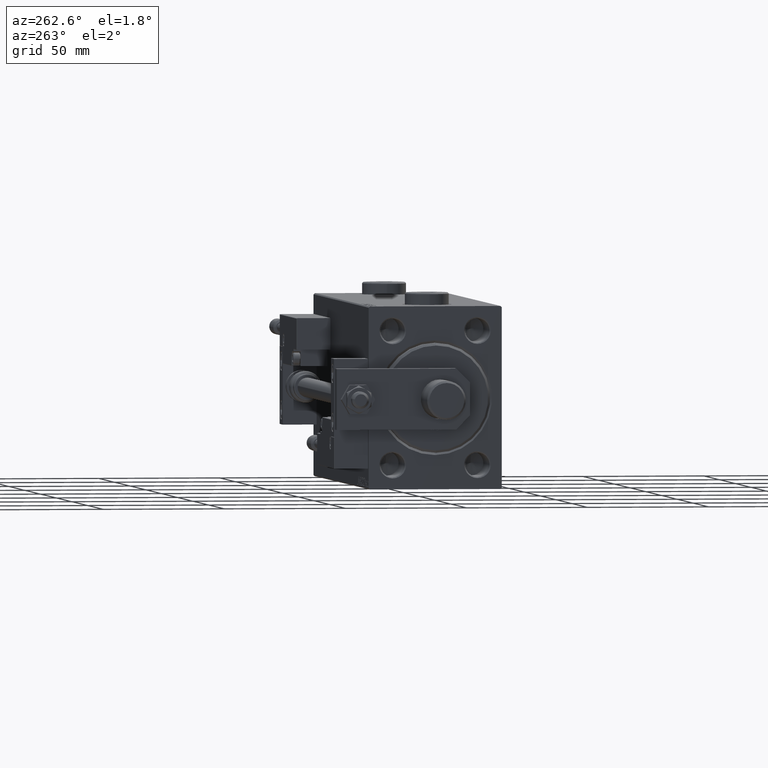
[diagram: clean part render]
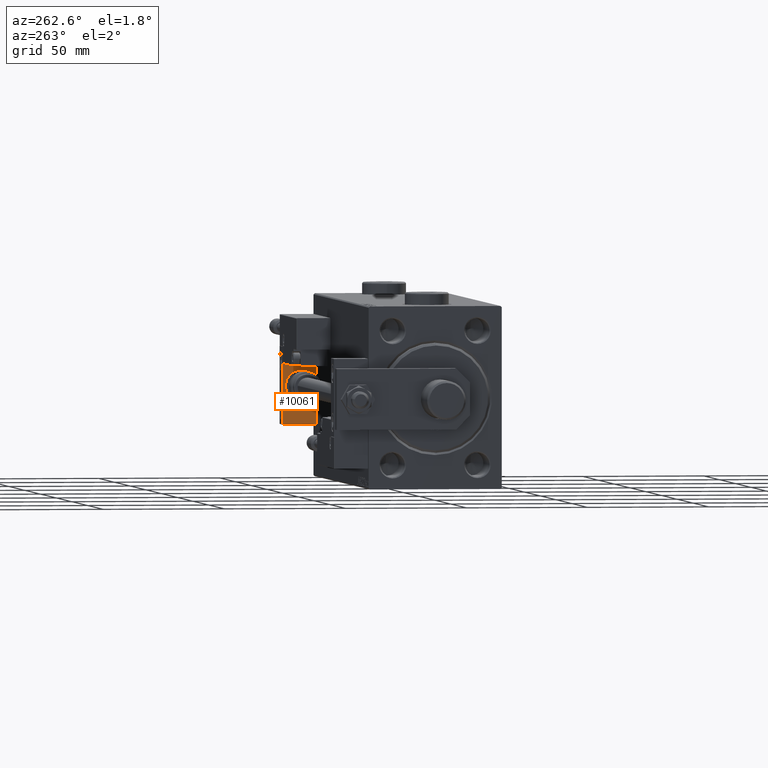
[diagram: same view with one face highlighted and labeled with its STEP entity id]
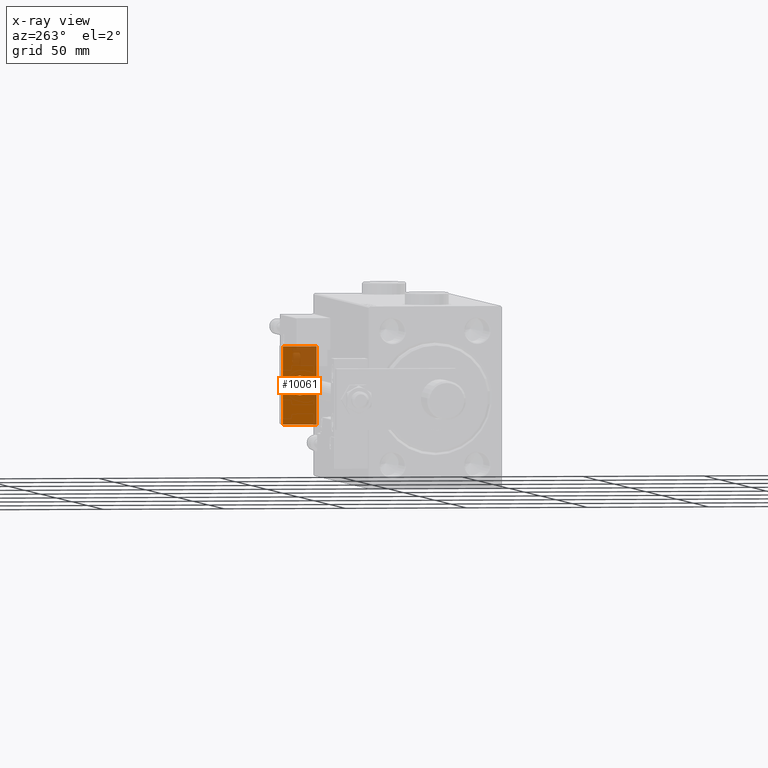
[diagram: x-ray of the same camera — body ghosted, the highlighted face saturated]
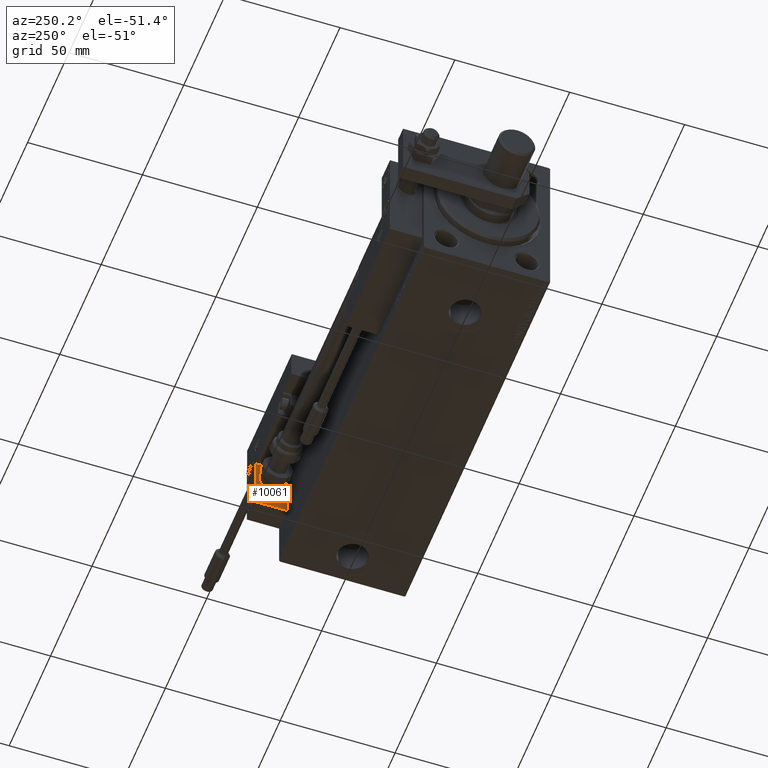
[diagram: same view with one face highlighted and labeled with its STEP entity id]
A machine part, auxiliary view. The second image highlights one B-rep face of the part: STEP entity #10061.
The next image is the same camera in x-ray: the body ghosted, the highlighted face saturated — about 28% of this face is hidden behind the body in this view.
A second angle (auxiliary view) of the same face is appended — the face is thin or edge-on in the first view.
In plain terms, the highlighted planar face has unit normal (-1, 0, 0).
Its self-contained STEP definition (entity closure, byte-faithful):
#200 = EDGE_LOOP ( 'NONE', ( #40059, #48393 ) ) ;
#332 = CARTESIAN_POINT ( 'NONE',  ( 0.000000000000000000, 7.000000000000000000, 15.99999999999999289 ) ) ;
#1822 = CARTESIAN_POINT ( 'NONE',  ( 0.000000000000000000, 4.898587196589412829E-16, -4.000000000000000000 ) ) ;
#1891 = EDGE_CURVE ( 'NONE', #28985, #49955, #20814, .T. ) ;
#2251 = PLANE ( 'NONE',  #43623 ) ;
#2521 = EDGE_CURVE ( 'NONE', #26503, #10159, #4643, .T. ) ;
#2914 = EDGE_LOOP ( 'NONE', ( #27660, #45541, #47717, #10496 ) ) ;
#3319 = DIRECTION ( 'NONE',  ( -0.000000000000000000, 0.000000000000000000, 1.000000000000000000 ) ) ;
#4100 = DIRECTION ( 'NONE',  ( 0.000000000000000000, -1.000000000000000000, 0.000000000000000000 ) ) ;
#4643 = CIRCLE ( 'NONE', #34743, 4.000000000000000000 ) ;
#8386 = VECTOR ( 'NONE', #14373, 1000.000000000000000 ) ;
#8480 = DIRECTION ( 'NONE',  ( 0.000000000000000000, 0.000000000000000000, 1.000000000000000000 ) ) ;
#10061 = ADVANCED_FACE ( 'NONE', ( #22720, #39175 ), #2251, .T. ) ;
#10159 = VERTEX_POINT ( 'NONE', #31621 ) ;
#10496 = ORIENTED_EDGE ( 'NONE', *, *, #28907, .T. ) ;
#12380 = CARTESIAN_POINT ( 'NONE',  ( 0.000000000000000000, 7.000000000000000000, -16.00000000000000711 ) ) ;
#12522 = CARTESIAN_POINT ( 'NONE',  ( 0.000000000000000000, 0.000000000000000000, 0.000000000000000000 ) ) ;
#12732 = CARTESIAN_POINT ( 'NONE',  ( 0.000000000000000000, -7.000000000000000000, -16.00000000000000711 ) ) ;
#13323 = DIRECTION ( 'NONE',  ( 0.000000000000000000, -1.000000000000000000, 0.000000000000000000 ) ) ;
#14373 = DIRECTION ( 'NONE',  ( 0.000000000000000000, 0.000000000000000000, -1.000000000000000000 ) ) ;
#15298 = CARTESIAN_POINT ( 'NONE',  ( 0.000000000000000000, 0.000000000000000000, 0.000000000000000000 ) ) ;
#15423 = EDGE_CURVE ( 'NONE', #49955, #44337, #47515, .T. ) ;
#18693 = DIRECTION ( 'NONE',  ( -1.000000000000000000, 0.000000000000000000, -0.000000000000000000 ) ) ;
#20814 = LINE ( 'NONE', #332, #41591 ) ;
#22720 = FACE_BOUND ( 'NONE', #200, .T. ) ;
#26503 = VERTEX_POINT ( 'NONE', #1822 ) ;
#26758 = CARTESIAN_POINT ( 'NONE',  ( 0.000000000000000000, -7.000000000000000000, 15.99999999999999289 ) ) ;
#27153 = DIRECTION ( 'NONE',  ( -1.000000000000000000, -0.000000000000000000, -0.000000000000000000 ) ) ;
#27660 = ORIENTED_EDGE ( 'NONE', *, *, #15423, .F. ) ;
#27874 = EDGE_CURVE ( 'NONE', #28985, #38133, #50289, .T. ) ;
#28907 = EDGE_CURVE ( 'NONE', #38133, #44337, #29502, .T. ) ;
#28953 = DIRECTION ( 'NONE',  ( -1.000000000000000000, -0.000000000000000000, -0.000000000000000000 ) ) ;
#28978 = EDGE_CURVE ( 'NONE', #10159, #26503, #30642, .T. ) ;
#28985 = VERTEX_POINT ( 'NONE', #33548 ) ;
#29502 = LINE ( 'NONE', #50234, #48690 ) ;
#30642 = CIRCLE ( 'NONE', #45267, 4.000000000000000000 ) ;
#31621 = CARTESIAN_POINT ( 'NONE',  ( 0.000000000000000000, 0.000000000000000000, 4.000000000000000000 ) ) ;
#32799 = DIRECTION ( 'NONE',  ( 0.000000000000000000, 0.000000000000000000, -1.000000000000000000 ) ) ;
#33066 = CARTESIAN_POINT ( 'NONE',  ( 0.000000000000000000, 7.000000000000000000, 15.99999999999999289 ) ) ;
#33548 = CARTESIAN_POINT ( 'NONE',  ( 0.000000000000000000, 7.000000000000000000, 15.99999999999999289 ) ) ;
#33748 = VECTOR ( 'NONE', #32799, 1000.000000000000000 ) ;
#34743 = AXIS2_PLACEMENT_3D ( 'NONE', #15298, #27153, #47370 ) ;
#38133 = VERTEX_POINT ( 'NONE', #12380 ) ;
#39175 = FACE_OUTER_BOUND ( 'NONE', #2914, .T. ) ;
#40059 = ORIENTED_EDGE ( 'NONE', *, *, #28978, .F. ) ;
#41591 = VECTOR ( 'NONE', #4100, 1000.000000000000000 ) ;
#42213 = CARTESIAN_POINT ( 'NONE',  ( 0.000000000000000000, -7.000000000000000000, 15.99999999999999289 ) ) ;
#43623 = AXIS2_PLACEMENT_3D ( 'NONE', #51545, #18693, #3319 ) ;
#44337 = VERTEX_POINT ( 'NONE', #12732 ) ;
#45267 = AXIS2_PLACEMENT_3D ( 'NONE', #12522, #28953, #8480 ) ;
#45541 = ORIENTED_EDGE ( 'NONE', *, *, #1891, .F. ) ;
#47370 = DIRECTION ( 'NONE',  ( 0.000000000000000000, 0.000000000000000000, 1.000000000000000000 ) ) ;
#47515 = LINE ( 'NONE', #26758, #8386 ) ;
#47717 = ORIENTED_EDGE ( 'NONE', *, *, #27874, .T. ) ;
#48393 = ORIENTED_EDGE ( 'NONE', *, *, #2521, .F. ) ;
#48690 = VECTOR ( 'NONE', #13323, 1000.000000000000000 ) ;
#49955 = VERTEX_POINT ( 'NONE', #42213 ) ;
#50234 = CARTESIAN_POINT ( 'NONE',  ( 0.000000000000000000, 7.000000000000000000, -16.00000000000000711 ) ) ;
#50289 = LINE ( 'NONE', #33066, #33748 ) ;
#51545 = CARTESIAN_POINT ( 'NONE',  ( 0.000000000000000000, 0.000000000000000000, 0.000000000000000000 ) ) ;